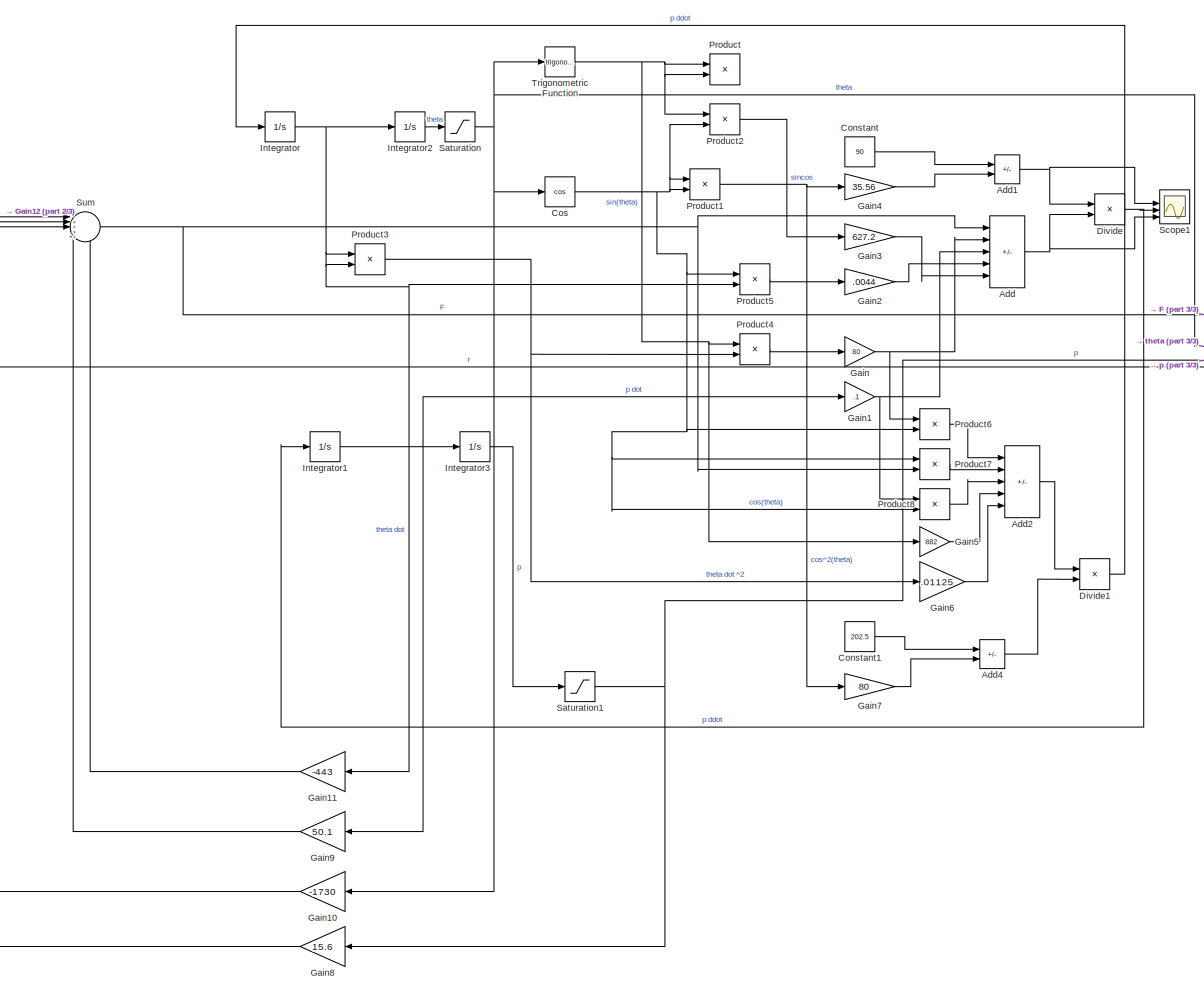
[diagram: root canvas - part 1/3, center side, full height]
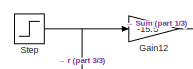
[diagram: root canvas - part 2/3, top left region]
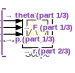
[diagram: root canvas - part 3/3, middle right region]
MODEL slx_71ce956006f8
KIND model
CONFIG AbsTol = auto
CONFIG EnableMultiTasking = off
CONFIG FixedStep = auto
CONFIG MaxStep = auto
CONFIG MinStep = auto
CONFIG RelTol = 1e-3
CONFIG SampleTimeConstraint = Unconstrained
CONFIG Solver = VariableStepAuto
CONFIG SolverName = VariableStepAuto
CONFIG StartTime = 0.0
CONFIG StopTime = 60
BLOCK [Sum] Add
  IconShape = rectangular
  Inputs = ++--+
  Ports = [5, 1]
BLOCK [Sum] Add1
  IconShape = rectangular
  Inputs = +-
  Ports = [2, 1]
BLOCK [Sum] Add2
  IconShape = rectangular
  Inputs = ++-+-
  Ports = [5, 1]
BLOCK [Sum] Add4
  IconShape = rectangular
  Inputs = +-
  Ports = [2, 1]
BLOCK [Constant] Constant
  Value = 90
BLOCK [Constant] Constant1
  Value = 202.5
BLOCK [Trigonometry] Cos
  Operator = cos
  Ports = [1, 1]
BLOCK [Product] Divide
  Inputs = /*
  Ports = [2, 1]
BLOCK [Product] Divide1
  Inputs = */
  Ports = [2, 1]
BLOCK [Gain] Gain
  Gain = 80
BLOCK [Gain] Gain1
  Gain = .1
BLOCK [Gain] Gain10
  Gain = -1730
BLOCK [Gain] Gain11
  Gain = -443
BLOCK [Gain] Gain12
  Gain = -15.5
BLOCK [Gain] Gain2
  Gain = .0044
BLOCK [Gain] Gain3
  Gain = 627.2
BLOCK [Gain] Gain4
  Gain = 35.56
BLOCK [Gain] Gain5
  Gain = 882
BLOCK [Gain] Gain6
  Gain = .01125
BLOCK [Gain] Gain7
  Gain = 80
BLOCK [Gain] Gain8
  Gain = 15.6
BLOCK [Gain] Gain9
  Gain = 50.1
BLOCK [Integrator] Integrator
  Ports = [1, 1]
BLOCK [Integrator] Integrator1
  Ports = [1, 1]
BLOCK [Integrator] Integrator2
  Ports = [1, 1]
BLOCK [Integrator] Integrator3
  Ports = [1, 1]
BLOCK [Product] Product
  Ports = [2, 1]
BLOCK [Product] Product1
  Ports = [2, 1]
BLOCK [Product] Product2
  Ports = [2, 1]
BLOCK [Product] Product3
  Ports = [2, 1]
BLOCK [Product] Product4
  Ports = [2, 1]
BLOCK [Product] Product5
  Ports = [2, 1]
BLOCK [Product] Product6
  Ports = [2, 1]
BLOCK [Product] Product7
  Ports = [2, 1]
BLOCK [Product] Product8
  Ports = [2, 1]
BLOCK [Saturate] Saturation
  Commented = through
BLOCK [Saturate] Saturation1
  Commented = through
  LowerLimit = -1
  UpperLimit = 1
BLOCK [Scope] Scope
  Floating = off
  NumInputPorts = 4
  Ports = [4]
  ScopeSpecificationString = Simulink.scopes.TimeScopeBlockCfg('CurrentConfiguration', extmgr.ConfigurationSet(extmgr.Configuration('Core','General UI',true),extmgr.Configuration('Core','Source UI',true),extmgr.Configuration('Sources','WiredSimulink',true),extmgr.Configuration('Visuals','Time Domain',true,'SerializedDisplays',{struct('MinYLimReal','-20.13371','MaxYLimReal','26.20335','YLabelReal','','MinYLimMag','0.00000','Ma...<+1414ch>
BLOCK [Scope] Scope1
  Floating = off
  NumInputPorts = 4
  Ports = [4]
  ScopeSpecificationString = Simulink.scopes.TimeScopeBlockCfg('CurrentConfiguration', extmgr.ConfigurationSet(extmgr.Configuration('Core','General UI',true),extmgr.Configuration('Core','Source UI',true),extmgr.Configuration('Sources','WiredSimulink',true,'DataLoggingVariableName','ScopeData1'),extmgr.Configuration('Visuals','Time Domain',true,'SerializedDisplays',{struct('MinYLimReal','-24.24424','MaxYLimReal','63.19816','YL...<+1448ch>
BLOCK [Step] Step
  SampleTime = 0
BLOCK [Sum] Sum
  Inputs = |+++++
  Ports = [5, 1]
BLOCK [Trigonometry] Trigonometric Function
  Ports = [1, 1]
NET Add1:1 -> Divide:1, Scope1:2
LINE Add2:1 -> Divide1:1
LINE Add4:1 -> Divide1:2
NET Add:1 -> Divide:2, Scope1:4
LINE Constant1:1 -> Add4:1
LINE Constant:1 -> Add1:1
NET Cos:1 -> Product1:1, Product1:2, Product2:2, Product5:1, Product6:2, Product7:1, Product8:2
LINE Divide1:1 -> Integrator:1
NET Divide:1 -> Integrator1:1, Scope1:3
LINE Gain10:1 -> Sum:3
LINE Gain11:1 -> Sum:5
LINE Gain12:1 -> Sum:1
NET Gain1:1 -> Add:3, Product8:1
LINE Gain2:1 -> Add:4
LINE Gain3:1 -> Add:5
LINE Gain4:1 -> Add1:2
LINE Gain5:1 -> Add2:4
LINE Gain6:1 -> Add2:5
LINE Gain7:1 -> Add4:2
LINE Gain8:1 -> Sum:2
LINE Gain9:1 -> Sum:4
NET Gain:1 -> Add:2, Product6:1
NET Integrator1:1 -> Gain1:1, Gain9:1, Integrator3:1
LINE Integrator2:1 -> Saturation:1
LINE Integrator3:1 -> Saturation1:1
NET Integrator:1 -> Gain11:1, Integrator2:1, Product3:1, Product3:2, Product5:2
NET Product1:1 -> Gain4:1, Gain7:1
LINE Product2:1 -> Gain3:1
NET Product3:1 -> Gain6:1, Product4:2
LINE Product4:1 -> Gain:1
LINE Product5:1 -> Gain2:1
LINE Product6:1 -> Add2:1
LINE Product7:1 -> Add2:2
LINE Product8:1 -> Add2:3
NET Saturation1:1 -> Gain8:1, Scope:3
NET Saturation:1 -> Cos:1, Gain10:1, Scope:1, Trigonometric Function:1
NET Step:1 -> Gain12:1, Scope:4
NET Sum:1 -> Add:1, Product7:2, Scope:2
NET Trigonometric Function:1 -> Gain5:1, Product2:1, Product4:1, Product:1, Product:2
note: NET lines group one-source signal fan-out (src -> all destinations, sorted); 1:1 wires keep LINE
